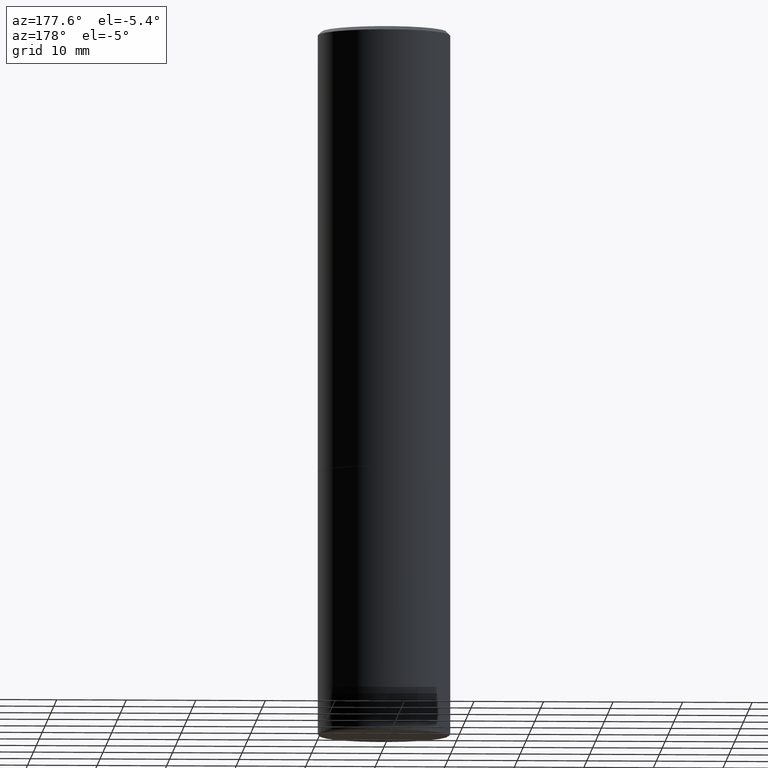
[diagram: clean part render]
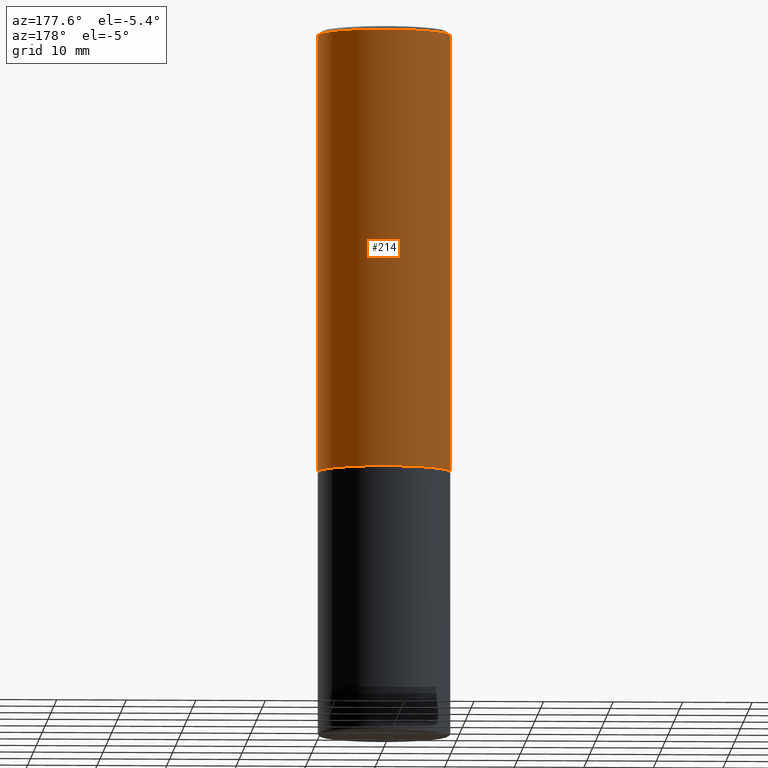
[diagram: same view with one face highlighted and labeled with its STEP entity id]
A machine part, auxiliary view. The second image highlights one B-rep face of the part: STEP entity #214.
In plain terms, the highlighted cylindrical surface (partial cylindrical patch) has radius 9.525 mm, axis along (-0, 0, 1).
Its self-contained STEP definition (entity closure, byte-faithful):
#9 = VERTEX_POINT ( 'NONE', #75 ) ;
#10 = CARTESIAN_POINT ( 'NONE',  ( 6.111226546656659252E-29, -8.725211865769023513E-15, -2.499000000000000998 ) ) ;
#17 = EDGE_CURVE ( 'NONE', #299, #395, #370, .T. ) ;
#33 = EDGE_CURVE ( 'NONE', #299, #9, #261, .T. ) ;
#41 = VECTOR ( 'NONE', #72, 39.37007874015748143 ) ;
#52 = AXIS2_PLACEMENT_3D ( 'NONE', #317, #390, #53 ) ;
#53 = DIRECTION ( 'NONE',  ( 1.000000000000000000, -6.982962677686266711E-15, 0.000000000000000000 ) ) ;
#63 = EDGE_LOOP ( 'NONE', ( #132, #355, #319, #147 ) ) ;
#72 = DIRECTION ( 'NONE',  ( -2.445468806185136877E-29, 3.491481338843145188E-15, 1.000000000000000000 ) ) ;
#75 = CARTESIAN_POINT ( 'NONE',  ( 0.3749999999999996669, -2.642516375941185268E-15, -0.02000000000000001776 ) ) ;
#104 = VECTOR ( 'NONE', #429, 39.37007874015748143 ) ;
#119 = CARTESIAN_POINT ( 'NONE',  ( -0.3749999999999996669, 2.548781377355484746E-15, -0.02000000000000001776 ) ) ;
#131 = CARTESIAN_POINT ( 'NONE',  ( -0.3749999999999999445, -1.732985487172565737E-15, -2.499000000000000998 ) ) ;
#132 = ORIENTED_EDGE ( 'NONE', *, *, #17, .T. ) ;
#147 = ORIENTED_EDGE ( 'NONE', *, *, #33, .F. ) ;
#160 = AXIS2_PLACEMENT_3D ( 'NONE', #360, #224, #294 ) ;
#168 = EDGE_CURVE ( 'NONE', #9, #331, #171, .T. ) ;
#171 = CIRCLE ( 'NONE', #52, 0.3749999999999996669 ) ;
#189 = AXIS2_PLACEMENT_3D ( 'NONE', #10, #441, #305 ) ;
#214 = ADVANCED_FACE ( 'NONE', ( #364 ), #433, .T. ) ;
#224 = DIRECTION ( 'NONE',  ( -2.445468806185136597E-29, 3.491481338843145583E-15, 1.000000000000000000 ) ) ;
#261 = LINE ( 'NONE', #373, #41 ) ;
#274 = CARTESIAN_POINT ( 'NONE',  ( 0.3750000000000000555, -1.134382286990137353E-14, -2.499000000000000998 ) ) ;
#294 = DIRECTION ( 'NONE',  ( 1.000000000000000000, -6.982962677686265922E-15, 4.876176775795935793E-29 ) ) ;
#299 = VERTEX_POINT ( 'NONE', #274 ) ;
#305 = DIRECTION ( 'NONE',  ( 1.000000000000000000, -6.982962677686264344E-15, 0.000000000000000000 ) ) ;
#314 = LINE ( 'NONE', #424, #104 ) ;
#317 = CARTESIAN_POINT ( 'NONE',  ( 4.890937612370276662E-31, -6.982962677686296539E-17, -0.02000000000000001776 ) ) ;
#319 = ORIENTED_EDGE ( 'NONE', *, *, #168, .F. ) ;
#331 = VERTEX_POINT ( 'NONE', #119 ) ;
#333 = EDGE_CURVE ( 'NONE', #395, #331, #314, .T. ) ;
#355 = ORIENTED_EDGE ( 'NONE', *, *, #333, .T. ) ;
#360 = CARTESIAN_POINT ( 'NONE',  ( 0.000000000000000000, 0.000000000000000000, 0.000000000000000000 ) ) ;
#364 = FACE_OUTER_BOUND ( 'NONE', #63, .T. ) ;
#370 = CIRCLE ( 'NONE', #189, 0.3750000000000000555 ) ;
#373 = CARTESIAN_POINT ( 'NONE',  ( 0.3749999999999998335, -2.618611004132348439E-15, 1.828566290923475082E-29 ) ) ;
#390 = DIRECTION ( 'NONE',  ( -2.445468806185136597E-29, 3.491481338843145583E-15, 1.000000000000000000 ) ) ;
#395 = VERTEX_POINT ( 'NONE', #131 ) ;
#424 = CARTESIAN_POINT ( 'NONE',  ( -0.3749999999999998335, 2.664535259100374514E-15, -1.844600658845588757E-29 ) ) ;
#429 = DIRECTION ( 'NONE',  ( -2.445468806185136877E-29, 3.491481338843145188E-15, 1.000000000000000000 ) ) ;
#433 = CYLINDRICAL_SURFACE ( 'NONE', #160, 0.3749999999999998335 ) ;
#441 = DIRECTION ( 'NONE',  ( -2.445468806185136597E-29, 3.491481338843145583E-15, 1.000000000000000000 ) ) ;